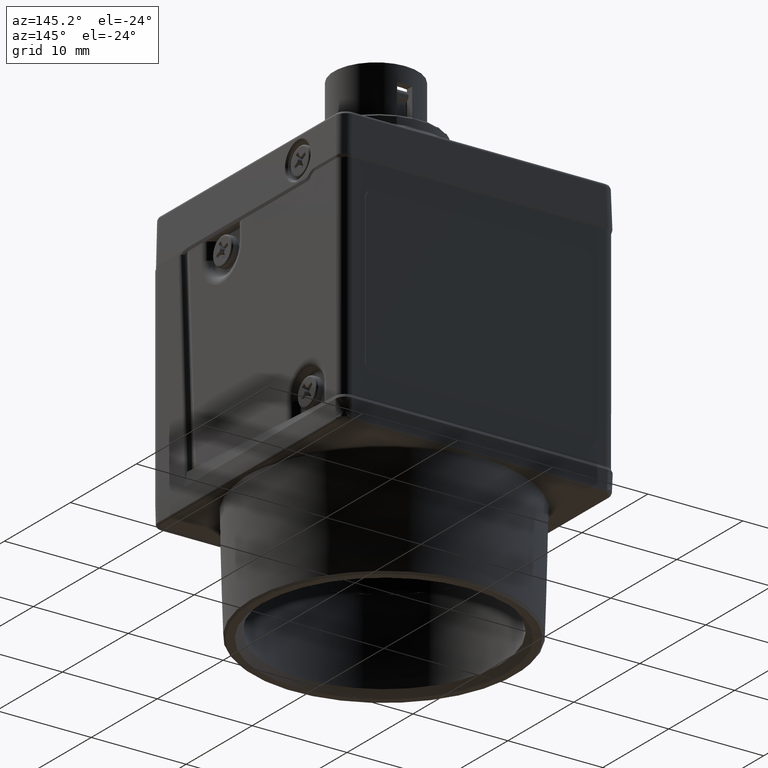
[diagram: clean part render]
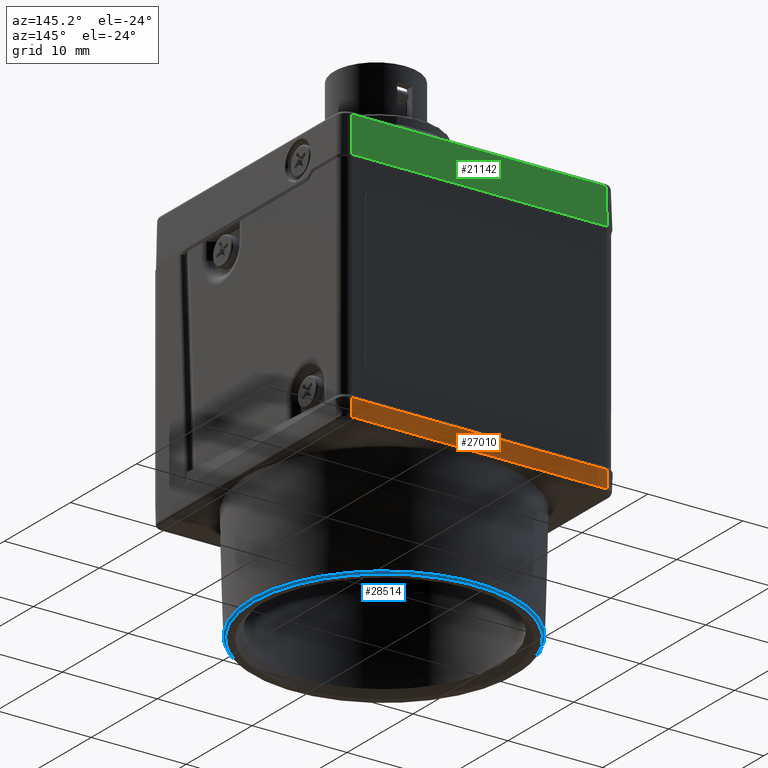
[diagram: same view with three faces highlighted in distinct colors, each labeled with its STEP entity id]
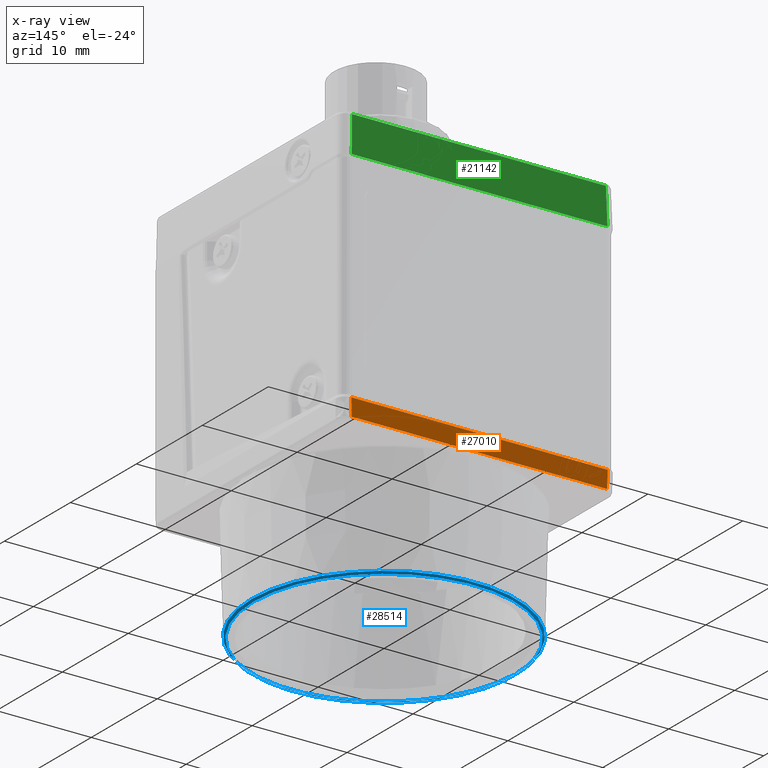
[diagram: x-ray of the same camera — body ghosted, the three highlighted faces saturated]
A machine part, auxiliary view with three faces highlighted in distinct colors.
The next image is the same camera in x-ray (body ghosted, the three faces saturated) — at least one of them is partly hidden behind the body in this view.
Their STEP definitions:

[orange] entity #27010 — the highlighted planar face has unit normal (-0, 0.9997, -0.0262).
#26970=CARTESIAN_POINT('',(13.445009564704558,14.445009564704884,12.000000000000014));
#26971=DIRECTION('',(-3.689789E-014,0.999657324975557,-0.026176948307877));
#26972=DIRECTION('',(-2.487810E-015,0.026176948307877,0.999657324975557));
#26973=AXIS2_PLACEMENT_3D('',#26970,#26971,#26972);
#26974=PLANE('',#26973);
#26975=CARTESIAN_POINT('',(-13.452659700921028,14.452659700920066,12.292146915507612));
#26976=VERTEX_POINT('',#26975);
#26977=CARTESIAN_POINT('',(13.452659700920721,14.452659700921050,12.292146915507654));
#26978=VERTEX_POINT('',#26977);
#26979=CARTESIAN_POINT('',(-13.452659700921030,14.452659700920055,12.292146915507614));
#26980=DIRECTION('',(1.0,0.0,0.0));
#26981=VECTOR('',#26980,26.905319401841751);
#26982=LINE('',#26979,#26981);
#26983=EDGE_CURVE('',#26976,#26978,#26982,.T.);
#26984=ORIENTED_EDGE('',*,*,#26983,.F.);
#26985=CARTESIAN_POINT('',(-13.500000000000160,14.499999999999192,14.099999999999975));
#26986=VERTEX_POINT('',#26985);
#26987=CARTESIAN_POINT('',(-13.452659700921025,14.452659700920060,12.292146915507608));
#26988=CARTESIAN_POINT('',(-13.468439800614069,14.468439800613101,12.894764610338399));
#26989=CARTESIAN_POINT('',(-13.484219900307119,14.484219900306151,13.497382305169186));
#26990=CARTESIAN_POINT('',(-13.500000000000163,14.499999999999192,14.099999999999975));
#26991=B_SPLINE_CURVE_WITH_KNOTS('',3,(#26987,#26988,#26989,#26990),.UNSPECIFIED.,.F.,.U.,(4,4),(0.139117578813160,1.0),.UNSPECIFIED.);
#26992=EDGE_CURVE('',#26976,#26986,#26991,.T.);
#26993=ORIENTED_EDGE('',*,*,#26992,.T.);
#26994=CARTESIAN_POINT('',(13.499999999999845,14.500000000000187,14.100000000000016));
#26995=VERTEX_POINT('',#26994);
#26996=CARTESIAN_POINT('',(13.499999999999847,14.500000000000185,14.100000000000016));
#26997=DIRECTION('',(-1.0,0.0,0.0));
#26998=VECTOR('',#26997,27.000000000000007);
#26999=LINE('',#26996,#26998);
#27000=EDGE_CURVE('',#26995,#26986,#26999,.T.);
#27001=ORIENTED_EDGE('',*,*,#27000,.F.);
#27002=CARTESIAN_POINT('',(13.452659700920719,14.452659700921048,12.292146915507653));
#27003=DIRECTION('',(0.026167984264978,0.026167984264984,0.999315001988370));
#27004=VECTOR('',#27003,1.809092309126969);
#27005=LINE('',#27002,#27004);
#27006=EDGE_CURVE('',#26978,#26995,#27005,.T.);
#27007=ORIENTED_EDGE('',*,*,#27006,.F.);
#27008=EDGE_LOOP('',(#26984,#26993,#27001,#27007));
#27009=FACE_OUTER_BOUND('',#27008,.T.);
#27010=ADVANCED_FACE('',(#27009),#26974,.T.);

[blue] entity #28514 — the highlighted conical surface has half-angle 45.75 deg.
#28480=CARTESIAN_POINT('',(13.730778505874859,1.856821E-013,2.100385E-014));
#28481=VERTEX_POINT('',#28480);
#28482=CARTESIAN_POINT('',(3.930255E-013,-3.188432E-013,3.441406E-028));
#28483=DIRECTION('',(0.0,0.0,1.0));
#28484=DIRECTION('',(-1.0,0.0,0.0));
#28485=AXIS2_PLACEMENT_3D('',#28482,#28483,#28484);
#28486=CIRCLE('',#28485,13.730778505874465);
#28487=EDGE_CURVE('',#28481,#28481,#28486,.T.);
#28495=CARTESIAN_POINT('',(3.928726E-013,-3.192380E-013,0.099965732497554));
#28496=DIRECTION('',(-1.529691E-015,-3.948632E-015,1.0));
#28497=DIRECTION('',(-1.0,0.0,0.0));
#28498=AXIS2_PLACEMENT_3D('',#28495,#28496,#28497);
#28499=CONICAL_SURFACE('',#28498,13.833396200705256,45.750000000000483);
#28500=CARTESIAN_POINT('',(13.936013895536433,1.881672E-013,0.199931464995130));
#28501=VERTEX_POINT('',#28500);
#28502=CARTESIAN_POINT('',(3.927197E-013,-3.196327E-013,0.199931464995109));
#28503=DIRECTION('',(0.0,0.0,-1.0));
#28504=DIRECTION('',(-1.0,0.0,0.0));
#28505=AXIS2_PLACEMENT_3D('',#28502,#28503,#28504);
#28506=CIRCLE('',#28505,13.936013895536041);
#28507=EDGE_CURVE('',#28501,#28501,#28506,.T.);
#28508=ORIENTED_EDGE('',*,*,#28507,.T.);
#28509=EDGE_LOOP('',(#28508));
#28510=FACE_OUTER_BOUND('',#28509,.T.);
#28511=ORIENTED_EDGE('',*,*,#28487,.T.);
#28512=EDGE_LOOP('',(#28511));
#28513=FACE_BOUND('',#28512,.T.);
#28514=ADVANCED_FACE('',(#28510,#28513),#28499,.T.);

[green] entity #21142 — the highlighted planar face has unit normal (-0, 0.9997, 0.0262).
#21022=CARTESIAN_POINT('',(-13.478011191473254,14.485522416714435,37.152804940463149));
#21023=VERTEX_POINT('',#21022);
#21033=CARTESIAN_POINT('',(13.478011192006047,14.485522416715419,37.152804940463035));
#21034=VERTEX_POINT('',#21033);
#21035=CARTESIAN_POINT('',(13.478011192006049,14.485522416715419,37.152804940463035));
#21036=DIRECTION('',(-1.0,0.0,0.0));
#21037=VECTOR('',#21036,26.956022383479301);
#21038=LINE('',#21035,#21037);
#21039=EDGE_CURVE('',#21034,#21023,#21038,.T.);
#21112=CARTESIAN_POINT('',(14.500000000266407,14.507853900000240,36.299999999999876));
#21113=DIRECTION('',(-3.651161E-014,0.999657324975557,0.026176948307872));
#21114=DIRECTION('',(-4.681732E-015,0.026176948307872,-0.999657324975557));
#21115=AXIS2_PLACEMENT_3D('',#21112,#21113,#21114);
#21116=PLANE('',#21115);
#21117=ORIENTED_EDGE('',*,*,#21039,.T.);
#21118=CARTESIAN_POINT('',(-13.377063203128243,14.384574428369453,41.007853084492339));
#21119=VERTEX_POINT('',#21118);
#21120=CARTESIAN_POINT('',(-13.377063203128246,14.384574428369453,41.007853084492346));
#21121=DIRECTION('',(-0.026167984264984,0.026167984264977,-0.999315001988370));
#21122=VECTOR('',#21121,3.857690654456999);
#21123=LINE('',#21120,#21122);
#21124=EDGE_CURVE('',#21119,#21023,#21123,.T.);
#21125=ORIENTED_EDGE('',*,*,#21124,.F.);
#21126=CARTESIAN_POINT('',(13.377063203661079,14.384574428370435,41.007853084492247));
#21127=VERTEX_POINT('',#21126);
#21128=CARTESIAN_POINT('',(13.377063203661079,14.384574428370435,41.007853084492247));
#21129=DIRECTION('',(-1.0,0.0,0.0));
#21130=VECTOR('',#21129,26.754126406789325);
#21131=LINE('',#21128,#21130);
#21132=EDGE_CURVE('',#21127,#21119,#21131,.T.);
#21133=ORIENTED_EDGE('',*,*,#21132,.F.);
#21134=CARTESIAN_POINT('',(13.478011192006049,14.485522416715421,37.152804940463042));
#21135=DIRECTION('',(-0.026167984264975,-0.026167984264979,0.999315001988370));
#21136=VECTOR('',#21135,3.857690654456992);
#21137=LINE('',#21134,#21136);
#21138=EDGE_CURVE('',#21034,#21127,#21137,.T.);
#21139=ORIENTED_EDGE('',*,*,#21138,.F.);
#21140=EDGE_LOOP('',(#21117,#21125,#21133,#21139));
#21141=FACE_OUTER_BOUND('',#21140,.T.);
#21142=ADVANCED_FACE('',(#21141),#21116,.T.);